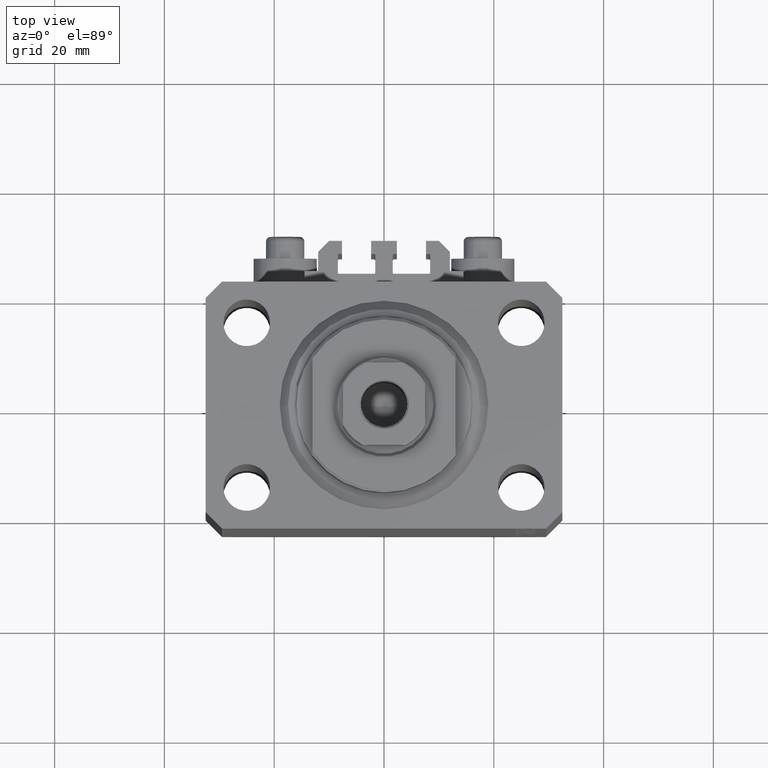
[diagram: clean part render]
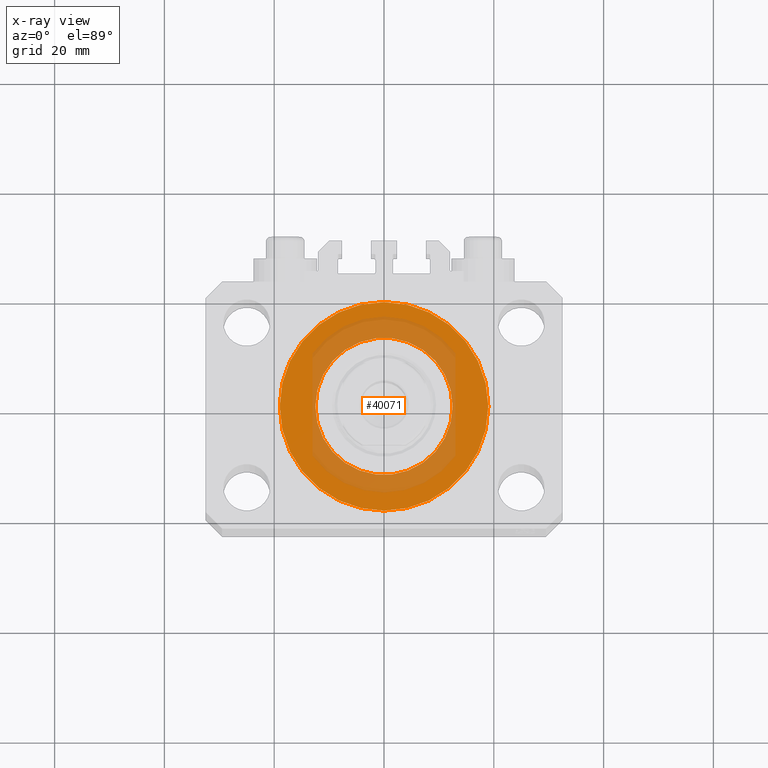
[diagram: x-ray — body ghosted, one internal face saturated and labeled with its STEP entity id]
A machine part, top view, then the same camera in x-ray: the body is ghosted and one INTERNAL B-rep face — a face not visible from any outside direction — is saturated and labeled: STEP entity #40071.
In plain terms, the highlighted planar face has unit normal (0, 0, 1).
Its self-contained STEP definition (entity closure, byte-faithful):
#1743 = EDGE_LOOP ( 'NONE', ( #16541, #39765 ) ) ;
#3968 = CARTESIAN_POINT ( 'NONE',  ( -19.00000000000000000, 2.326828918379970970E-15, -14.00000000000000000 ) ) ;
#4158 = CIRCLE ( 'NONE', #37010, 19.00000000000000000 ) ;
#4908 = AXIS2_PLACEMENT_3D ( 'NONE', #20850, #10307, #39515 ) ;
#5306 = EDGE_CURVE ( 'NONE', #25057, #5921, #4158, .T. ) ;
#5319 = CARTESIAN_POINT ( 'NONE',  ( 19.00000000000000000, 0.000000000000000000, -14.00000000000000000 ) ) ;
#5512 = DIRECTION ( 'NONE',  ( 1.000000000000000000, 0.000000000000000000, 0.000000000000000000 ) ) ;
#5837 = EDGE_CURVE ( 'NONE', #12115, #21050, #23254, .T. ) ;
#5921 = VERTEX_POINT ( 'NONE', #5319 ) ;
#6273 = EDGE_LOOP ( 'NONE', ( #8871, #16142 ) ) ;
#7478 = CARTESIAN_POINT ( 'NONE',  ( 0.000000000000000000, 0.000000000000000000, -13.99999999999999822 ) ) ;
#8871 = ORIENTED_EDGE ( 'NONE', *, *, #5837, .F. ) ;
#10253 = CIRCLE ( 'NONE', #4908, 19.00000000000000000 ) ;
#10307 = DIRECTION ( 'NONE',  ( 0.000000000000000000, 0.000000000000000000, 1.000000000000000000 ) ) ;
#11251 = DIRECTION ( 'NONE',  ( 1.000000000000000000, 0.000000000000000000, -0.000000000000000000 ) ) ;
#12115 = VERTEX_POINT ( 'NONE', #43392 ) ;
#14849 = PLANE ( 'NONE',  #32133 ) ;
#16142 = ORIENTED_EDGE ( 'NONE', *, *, #43335, .F. ) ;
#16541 = ORIENTED_EDGE ( 'NONE', *, *, #24275, .T. ) ;
#17969 = FACE_OUTER_BOUND ( 'NONE', #1743, .T. ) ;
#20099 = CARTESIAN_POINT ( 'NONE',  ( 0.000000000000000000, 0.000000000000000000, -13.99999999999999822 ) ) ;
#20850 = CARTESIAN_POINT ( 'NONE',  ( 0.000000000000000000, 0.000000000000000000, -14.00000000000000000 ) ) ;
#21050 = VERTEX_POINT ( 'NONE', #25820 ) ;
#23254 = CIRCLE ( 'NONE', #28619, 12.50000000000000000 ) ;
#23928 = DIRECTION ( 'NONE',  ( 0.000000000000000000, 0.000000000000000000, 1.000000000000000000 ) ) ;
#24275 = EDGE_CURVE ( 'NONE', #5921, #25057, #10253, .T. ) ;
#25057 = VERTEX_POINT ( 'NONE', #3968 ) ;
#25820 = CARTESIAN_POINT ( 'NONE',  ( -12.50000000000000000, 1.530808498934191521E-15, -13.99999999999999822 ) ) ;
#25868 = CARTESIAN_POINT ( 'NONE',  ( 0.000000000000000000, 0.000000000000000000, -14.00000000000000000 ) ) ;
#25907 = DIRECTION ( 'NONE',  ( 0.000000000000000000, 0.000000000000000000, 1.000000000000000000 ) ) ;
#28619 = AXIS2_PLACEMENT_3D ( 'NONE', #7478, #25907, #35728 ) ;
#32133 = AXIS2_PLACEMENT_3D ( 'NONE', #25868, #40461, #11251 ) ;
#34129 = DIRECTION ( 'NONE',  ( 0.000000000000000000, 0.000000000000000000, 1.000000000000000000 ) ) ;
#34600 = DIRECTION ( 'NONE',  ( 1.000000000000000000, 0.000000000000000000, 0.000000000000000000 ) ) ;
#35728 = DIRECTION ( 'NONE',  ( 1.000000000000000000, 0.000000000000000000, 0.000000000000000000 ) ) ;
#37010 = AXIS2_PLACEMENT_3D ( 'NONE', #39915, #34129, #34600 ) ;
#39515 = DIRECTION ( 'NONE',  ( 1.000000000000000000, 0.000000000000000000, 0.000000000000000000 ) ) ;
#39765 = ORIENTED_EDGE ( 'NONE', *, *, #5306, .T. ) ;
#39869 = CIRCLE ( 'NONE', #45981, 12.50000000000000000 ) ;
#39915 = CARTESIAN_POINT ( 'NONE',  ( 0.000000000000000000, 0.000000000000000000, -14.00000000000000000 ) ) ;
#40071 = ADVANCED_FACE ( 'NONE', ( #47179, #17969 ), #14849, .T. ) ;
#40461 = DIRECTION ( 'NONE',  ( 0.000000000000000000, 0.000000000000000000, 1.000000000000000000 ) ) ;
#43335 = EDGE_CURVE ( 'NONE', #21050, #12115, #39869, .T. ) ;
#43392 = CARTESIAN_POINT ( 'NONE',  ( 12.50000000000000000, 0.000000000000000000, -13.99999999999999822 ) ) ;
#45981 = AXIS2_PLACEMENT_3D ( 'NONE', #20099, #23928, #5512 ) ;
#47179 = FACE_BOUND ( 'NONE', #6273, .T. ) ;